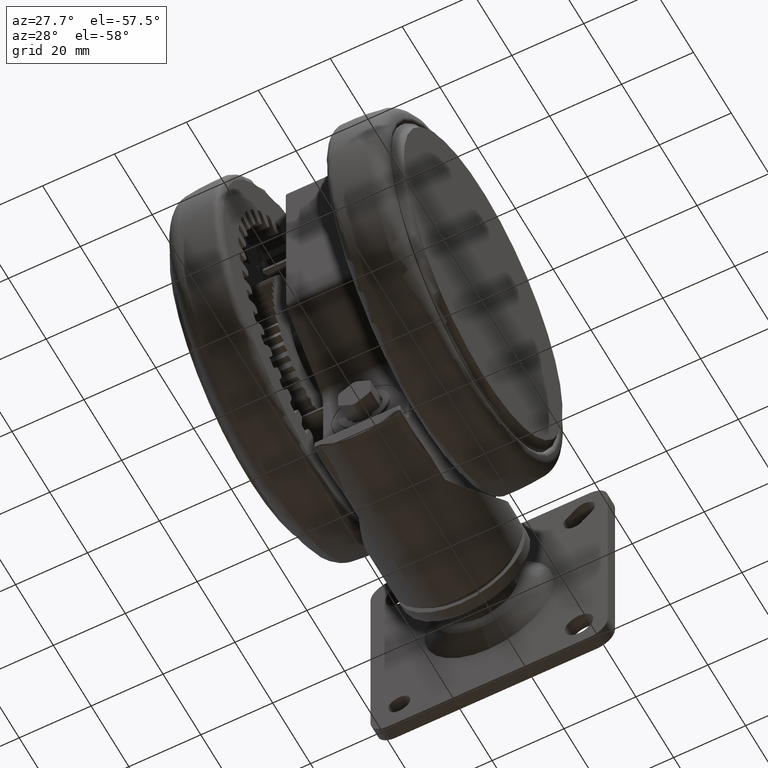
[diagram: clean part render]
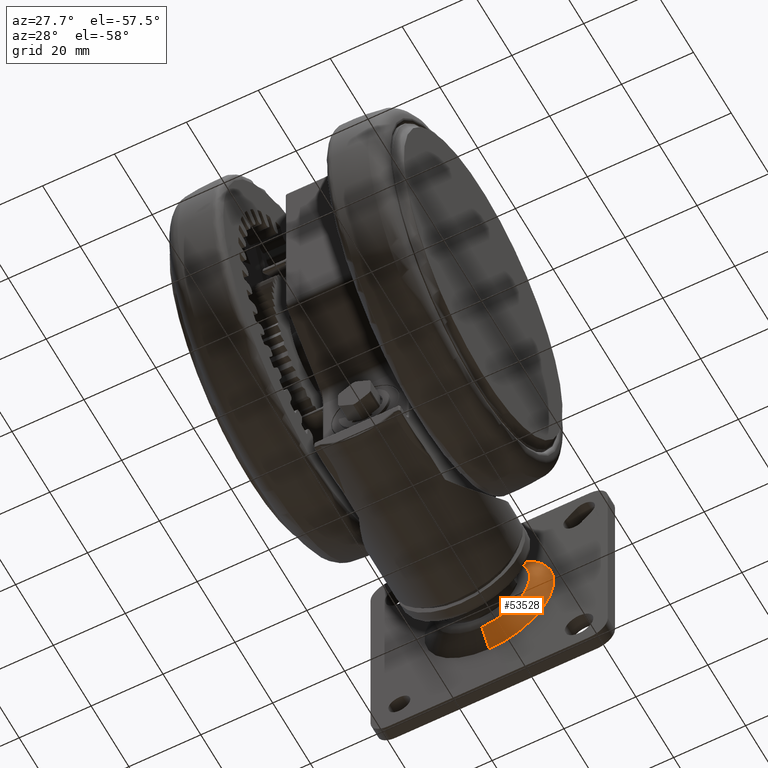
[diagram: same view with one face highlighted and labeled with its STEP entity id]
A machine part, auxiliary view. The second image highlights one B-rep face of the part: STEP entity #53528.
In plain terms, the highlighted conical surface has half-angle 51.077 deg.
Its self-contained STEP definition (entity closure, byte-faithful):
#3093 = VERTEX_POINT ( 'NONE', #22707 ) ;
#5675 = CARTESIAN_POINT ( 'NONE',  ( 2.961142634370844000, 67.31448181772077500, -32.59999999999990200 ) ) ;
#7090 = CONICAL_SURFACE ( 'NONE', #46485, 18.00000000000548900, 0.8914625149873958200 ) ;
#7335 = DIRECTION ( 'NONE',  ( 0.2095320203294574700, -0.9778017858731165000, -1.972152263052248800E-031 ) ) ;
#10925 = FACE_OUTER_BOUND ( 'NONE', #66582, .T. ) ;
#11433 = CIRCLE ( 'NONE', #54393, 18.00000000000256500 ) ;
#14078 = CARTESIAN_POINT ( 'NONE',  ( 38.16200692581381300, 74.85763454958343700, -32.59999999999990200 ) ) ;
#17285 = ORIENTED_EDGE ( 'NONE', *, *, #37837, .F. ) ;
#21382 = VECTOR ( 'NONE', #47941, 999.9999999999998900 ) ;
#21588 = DIRECTION ( 'NONE',  ( 0.9778017858731172800, 0.2095320203294542000, 0.0000000000000000000 ) ) ;
#22650 = VERTEX_POINT ( 'NONE', #35347 ) ;
#22707 = CARTESIAN_POINT ( 'NONE',  ( 2.961142634370993200, 67.31448181772070400, -32.59999999999990200 ) ) ;
#23635 = EDGE_CURVE ( 'NONE', #62283, #3093, #11433, .T. ) ;
#25080 = CARTESIAN_POINT ( 'NONE',  ( 21.36030366776739300, 67.35871125324528900, -32.59999999999990200 ) ) ;
#28559 = LINE ( 'NONE', #40113, #74823 ) ;
#29514 = EDGE_CURVE ( 'NONE', #29808, #62283, #28559, .T. ) ;
#29808 = VERTEX_POINT ( 'NONE', #74384 ) ;
#31136 = DIRECTION ( 'NONE',  ( -0.9778017858731172800, -0.2095320203294537000, 0.0000000000000000000 ) ) ;
#35347 = CARTESIAN_POINT ( 'NONE',  ( 8.375437295443193300, 64.57619916949855100, -32.59999999999990200 ) ) ;
#37837 = EDGE_CURVE ( 'NONE', #22650, #3093, #51639, .T. ) ;
#38528 = EDGE_CURVE ( 'NONE', #22650, #29808, #42089, .T. ) ;
#40113 = CARTESIAN_POINT ( 'NONE',  ( 38.16200692581379900, 74.85763454958342300, -32.59999999999990200 ) ) ;
#42089 = CIRCLE ( 'NONE', #76823, 13.27965090668206500 ) ;
#42893 = ORIENTED_EDGE ( 'NONE', *, *, #38528, .T. ) ;
#43524 = CARTESIAN_POINT ( 'NONE',  ( 20.56157478009227500, 71.08605818365204200, -32.59999999999990200 ) ) ;
#44275 = ORIENTED_EDGE ( 'NONE', *, *, #23635, .T. ) ;
#45619 = CARTESIAN_POINT ( 'NONE',  ( 20.56157478009232200, 71.08605818365209900, -32.59999999999990200 ) ) ;
#46485 = AXIS2_PLACEMENT_3D ( 'NONE', #45619, #51976, #21588 ) ;
#47941 = DIRECTION ( 'NONE',  ( -0.8923651239043883800, 0.4513141762000233400, -5.208927223791098600E-017 ) ) ;
#49584 = DIRECTION ( 'NONE',  ( -0.9778017858731163900, -0.2095320203294573900, 0.0000000000000000000 ) ) ;
#51639 = LINE ( 'NONE', #5675, #21382 ) ;
#51976 = DIRECTION ( 'NONE',  ( -0.2095320203294539500, 0.9778017858731172800, 3.399077683616229400E-033 ) ) ;
#53528 = ADVANCED_FACE ( 'NONE', ( #10925 ), #7090, .T. ) ;
#54393 = AXIS2_PLACEMENT_3D ( 'NONE', #43524, #7335, #49584 ) ;
#62283 = VERTEX_POINT ( 'NONE', #14078 ) ;
#64134 = DIRECTION ( 'NONE',  ( 0.6290777162423784000, 0.7773424129219205200, -4.318720051920380300E-017 ) ) ;
#66582 = EDGE_LOOP ( 'NONE', ( #17285, #42893, #73787, #44275 ) ) ;
#67305 = DIRECTION ( 'NONE',  ( -0.2095320203294539500, 0.9778017858731172800, 3.399077683616229400E-033 ) ) ;
#73787 = ORIENTED_EDGE ( 'NONE', *, *, #29514, .T. ) ;
#74384 = CARTESIAN_POINT ( 'NONE',  ( 34.34517004008871800, 70.14122333699140200, -32.59999999999990200 ) ) ;
#74823 = VECTOR ( 'NONE', #64134, 1000.000000000000100 ) ;
#76823 = AXIS2_PLACEMENT_3D ( 'NONE', #25080, #67305, #31136 ) ;